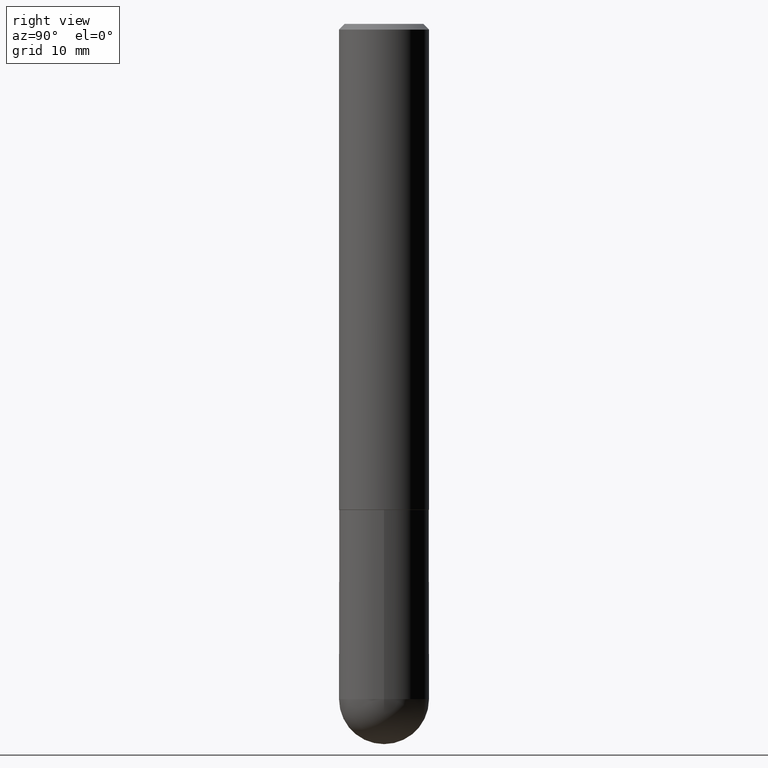
[diagram: clean part render]
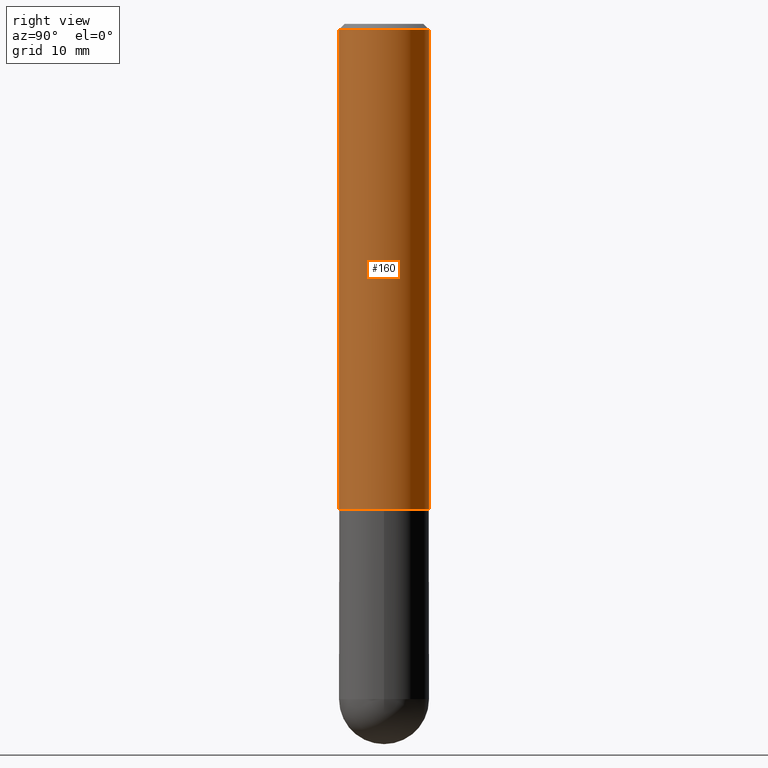
[diagram: same view with one face highlighted and labeled with its STEP entity id]
A machine part, right view. The second image highlights one B-rep face of the part: STEP entity #160.
In plain terms, the highlighted cylindrical surface (partial cylindrical patch) has radius 3.9688 mm, axis along (-0, 0, 1).
Its self-contained STEP definition (entity closure, byte-faithful):
#17 = CARTESIAN_POINT ( 'NONE',  ( -1.071952812151801215E-15, -0.1562500000000000833, -0.01999999999999948694 ) ) ;
#28 = EDGE_CURVE ( 'NONE', #200, #314, #173, .T. ) ;
#52 = DIRECTION ( 'NONE',  ( -2.446339956007467928E-29, 3.490233802714798564E-15, 1.000000000000000000 ) ) ;
#58 = CARTESIAN_POINT ( 'NONE',  ( 1.110223024625178431E-15, 0.1562499999999943379, -1.686000000000000831 ) ) ;
#60 = CARTESIAN_POINT ( 'NONE',  ( 1.091087918388479568E-15, 0.1562499999999999445, -0.02000000000000057981 ) ) ;
#64 = ORIENTED_EDGE ( 'NONE', *, *, #116, .F. ) ;
#69 = EDGE_CURVE ( 'NONE', #349, #344, #226, .T. ) ;
#78 = CARTESIAN_POINT ( 'NONE',  ( -1.091087918388439336E-15, -0.1562500000000060785, -1.685999999999999721 ) ) ;
#79 = AXIS2_PLACEMENT_3D ( 'NONE', #326, #141, #234 ) ;
#104 = CIRCLE ( 'NONE', #208, 0.1562500000000002220 ) ;
#116 = EDGE_CURVE ( 'NONE', #314, #344, #213, .T. ) ;
#120 = DIRECTION ( 'NONE',  ( -6.982962677686265922E-15, -1.000000000000000000, 3.490233802714798958E-15 ) ) ;
#141 = DIRECTION ( 'NONE',  ( -2.446339956007467928E-29, 3.490233802714798564E-15, 1.000000000000000000 ) ) ;
#152 = CYLINDRICAL_SURFACE ( 'NONE', #261, 0.1562500000000001110 ) ;
#160 = ADVANCED_FACE ( 'NONE', ( #357 ), #152, .T. ) ;
#173 = LINE ( 'NONE', #329, #246 ) ;
#176 = DIRECTION ( 'NONE',  ( -2.446339956007467928E-29, 3.490233802714798564E-15, 1.000000000000000000 ) ) ;
#183 = CARTESIAN_POINT ( 'NONE',  ( 0.000000000000000000, 0.000000000000000000, 0.000000000000000000 ) ) ;
#200 = VERTEX_POINT ( 'NONE', #78 ) ;
#206 = DIRECTION ( 'NONE',  ( -2.446339956007467648E-29, 3.490233802714798958E-15, 1.000000000000000000 ) ) ;
#208 = AXIS2_PLACEMENT_3D ( 'NONE', #336, #52, #303 ) ;
#213 = CIRCLE ( 'NONE', #79, 0.1562500000000000000 ) ;
#226 = LINE ( 'NONE', #321, #407 ) ;
#234 = DIRECTION ( 'NONE',  ( -6.982962677686265133E-15, -1.000000000000000000, 3.496765431890256920E-15 ) ) ;
#246 = VECTOR ( 'NONE', #295, 39.37007874015748143 ) ;
#261 = AXIS2_PLACEMENT_3D ( 'NONE', #183, #176, #120 ) ;
#283 = EDGE_LOOP ( 'NONE', ( #284, #374, #64, #342 ) ) ;
#284 = ORIENTED_EDGE ( 'NONE', *, *, #320, .T. ) ;
#295 = DIRECTION ( 'NONE',  ( -2.446339956007467648E-29, 3.490233802714798958E-15, 1.000000000000000000 ) ) ;
#303 = DIRECTION ( 'NONE',  ( -6.982962677686265922E-15, -1.000000000000000000, 3.496765431890251792E-15 ) ) ;
#314 = VERTEX_POINT ( 'NONE', #17 ) ;
#320 = EDGE_CURVE ( 'NONE', #200, #349, #104, .T. ) ;
#321 = CARTESIAN_POINT ( 'NONE',  ( 1.110223024625157132E-15, 0.1562500000000001110, -5.453490316741877193E-16 ) ) ;
#326 = CARTESIAN_POINT ( 'NONE',  ( 4.892679912014943914E-31, -6.980467605429607481E-17, -0.02000000000000003511 ) ) ;
#329 = CARTESIAN_POINT ( 'NONE',  ( -1.091087918388479765E-15, -0.1562500000000001110, 5.453490316741877193E-16 ) ) ;
#336 = CARTESIAN_POINT ( 'NONE',  ( 4.124529165828591356E-29, -5.884534191377150994E-15, -1.686000000000000165 ) ) ;
#342 = ORIENTED_EDGE ( 'NONE', *, *, #28, .F. ) ;
#344 = VERTEX_POINT ( 'NONE', #60 ) ;
#349 = VERTEX_POINT ( 'NONE', #58 ) ;
#357 = FACE_OUTER_BOUND ( 'NONE', #283, .T. ) ;
#374 = ORIENTED_EDGE ( 'NONE', *, *, #69, .T. ) ;
#407 = VECTOR ( 'NONE', #206, 39.37007874015748143 ) ;